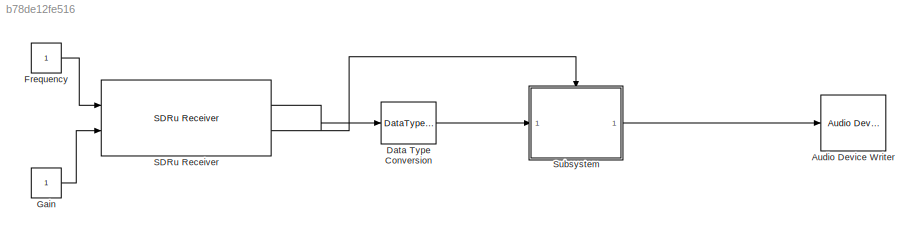
MODEL slx_b78de12fe516
KIND model
CONFIG AbsTol = auto
CONFIG EnableMultiTasking = off
CONFIG FixedStep = auto
CONFIG MaxStep = auto
CONFIG MinStep = auto
CONFIG RelTol = 1e-3
CONFIG SampleTimeConstraint = Unconstrained
CONFIG SolverName = VariableStepAuto
CONFIG StartTime = 0.0
CONFIG StopTime = 0.5
BLOCK [Reference] Audio Device Writer  REF=dspsnks4/Audio Device
Writer
  Ports = [1]
  SourceBlock = dspsnks4/Audio Device\nWriter
  SourceProductBaseCode = DS
  SourceType = Audio Device Writer
BLOCK [DataTypeConversion] Data Type Conversion
  RndMeth = Floor
  SaturateOnIntegerOverflow = off
BLOCK [Constant] Frequency
BLOCK [Constant] Gain
BLOCK [Reference] SDRu Receiver  REF=commsdrhw_v2/SDRu Receiver
  Ports = [2, 2]
  SourceBlock = commsdrhw_v2/SDRu Receiver
  SourceProductBaseCode = USRP
  SourceType = SDRu Receiver
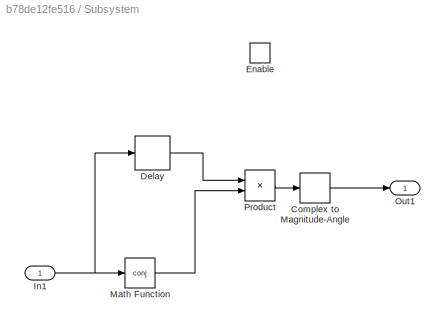
BLOCK [SubSystem] Subsystem
  Ports = [1, 1, 1]
  RequestExecContextInheritance = off
BLOCK [ComplexToMagnitudeAngle] Subsystem/Complex to Magnitude-Angle
  Output = Angle
  Ports = [1, 1]
BLOCK [Delay] Subsystem/Delay
  DelayLength = 1
  InitialCondition = 0
  InputPortMap = u0
  InputProcessing = Columns as channels (frame based)
  Ports = [1, 1]
BLOCK [EnablePort] Subsystem/Enable
  Ports = []
BLOCK [Inport] Subsystem/In1
BLOCK [Math] Subsystem/Math Function
  Operator = conj
  Ports = [1, 1]
BLOCK [Outport] Subsystem/Out1
BLOCK [Product] Subsystem/Product
  Ports = [2, 1]
LINE Data Type Conversion:1 -> Subsystem:1
LINE Frequency:1 -> SDRu Receiver:1
LINE Gain:1 -> SDRu Receiver:2
LINE SDRu Receiver:1 -> Data Type Conversion:1
LINE SDRu Receiver:2 -> Subsystem:enable
LINE Subsystem/Complex to Magnitude-Angle:1 -> Subsystem/Out1:1
LINE Subsystem/Delay:1 -> Subsystem/Product:1
NET Subsystem/In1:1 -> Subsystem/Delay:1, Subsystem/Math Function:1
LINE Subsystem/Math Function:1 -> Subsystem/Product:2
LINE Subsystem/Product:1 -> Subsystem/Complex to Magnitude-Angle:1
LINE Subsystem:1 -> Audio Device Writer:1
note: NET lines group one-source signal fan-out (src -> all destinations, sorted); 1:1 wires keep LINE
